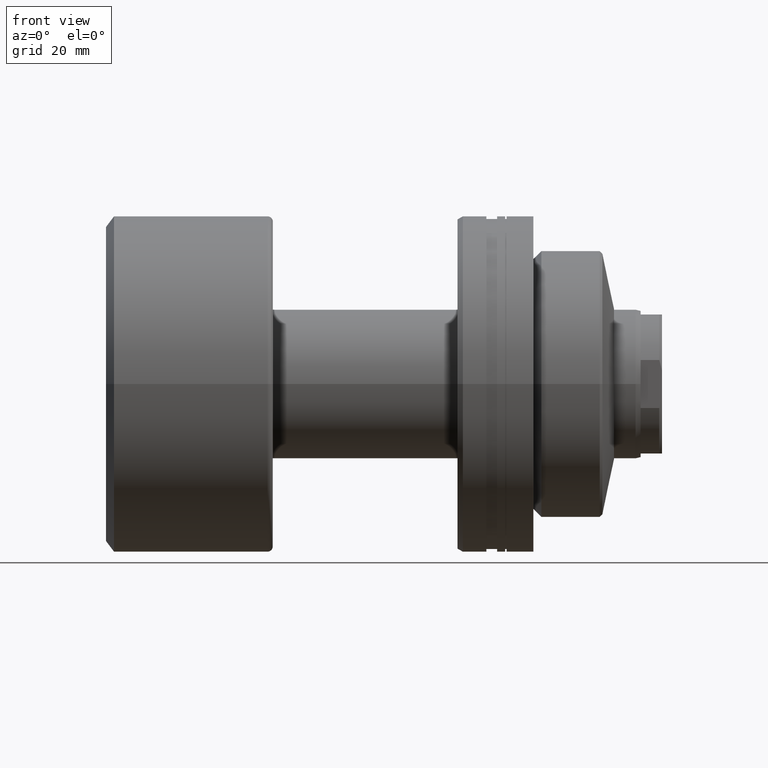
[diagram: clean part render]
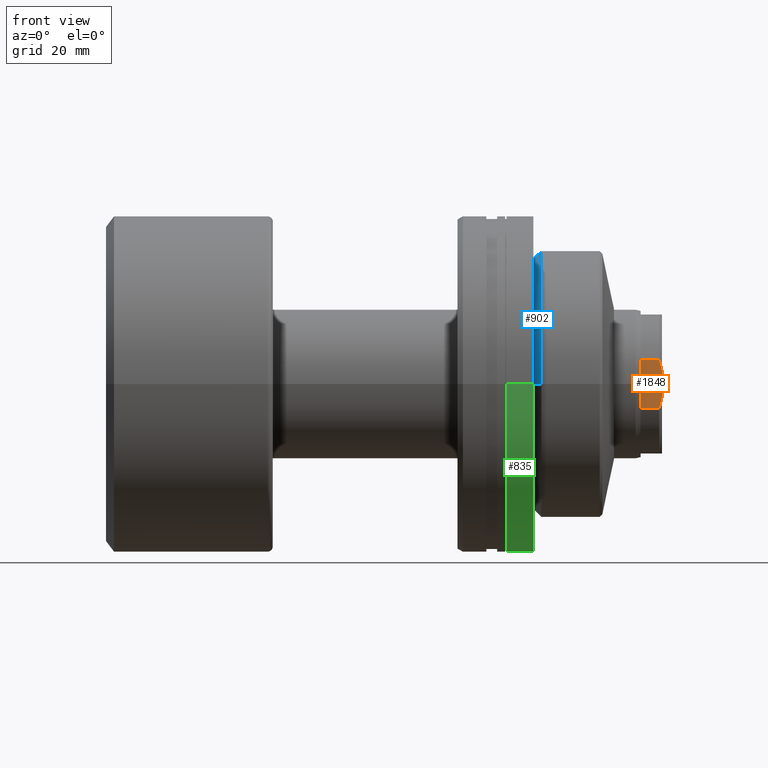
[diagram: same view with three faces highlighted in distinct colors, each labeled with its STEP entity id]
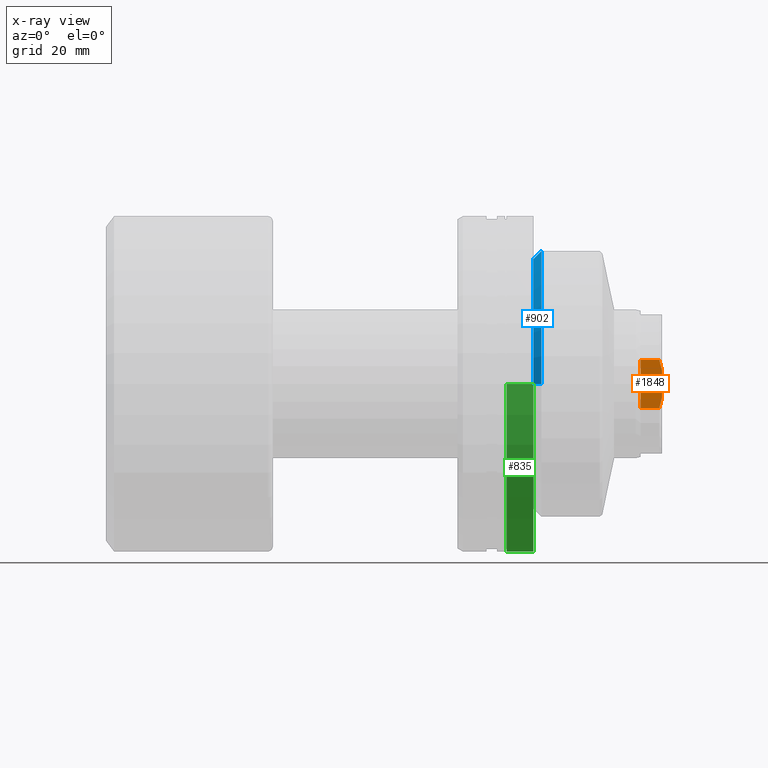
[diagram: x-ray of the same camera — body ghosted, the three highlighted faces saturated]
A machine part, front view with three faces highlighted in distinct colors.
The next image is the same camera in x-ray (body ghosted, the three faces saturated) — at least one of them is partly hidden behind the body in this view.
Their STEP definitions:

[orange] entity #1848 — the highlighted planar face has unit normal (0, 1, 0).
#20 = VERTEX_POINT ( 'NONE', #460 ) ;
#25 = CARTESIAN_POINT ( 'NONE',  ( 99.99999999999978684, -13.00000000000165379, -4.479118216792240759 ) ) ;
#36 = FACE_OUTER_BOUND ( 'NONE', #2209, .T. ) ;
#43 = EDGE_CURVE ( 'NONE', #412, #383, #1590, .T. ) ;
#55 = VERTEX_POINT ( 'NONE', #876 ) ;
#57 = VECTOR ( 'NONE', #776, 1000.000000000000000 ) ;
#112 = CARTESIAN_POINT ( 'NONE',  ( 103.5000000000000426, -13.00000000000224354, -4.479118216792421947 ) ) ;
#122 = ORIENTED_EDGE ( 'NONE', *, *, #585, .F. ) ;
#146 = DIRECTION ( 'NONE',  ( 0.000000000000000000, -3.872912908332386132E-16, 1.000000000000000000 ) ) ;
#271 = VECTOR ( 'NONE', #1379, 1000.000000000000000 ) ;
#334 = ORIENTED_EDGE ( 'NONE', *, *, #43, .T. ) ;
#341 = LINE ( 'NONE', #758, #643 ) ;
#343 = LINE ( 'NONE', #1391, #1251 ) ;
#383 = VERTEX_POINT ( 'NONE', #2056 ) ;
#412 = VERTEX_POINT ( 'NONE', #846 ) ;
#430 = CARTESIAN_POINT ( 'NONE',  ( 99.99999999999978684, -13.00000000000112621, 4.479118216795496821 ) ) ;
#460 = CARTESIAN_POINT ( 'NONE',  ( 103.9999999999997868, -13.00000000000172307, 2.561737691481097645 ) ) ;
#585 = EDGE_CURVE ( 'NONE', #55, #2162, #1491, .T. ) ;
#643 = VECTOR ( 'NONE', #1627, 1000.000000000000000 ) ;
#691 = CARTESIAN_POINT ( 'NONE',  ( 103.8743634208442899, -13.00000000000171951, -3.211564049327791270 ) ) ;
#740 = DIRECTION ( 'NONE',  ( -1.000000000000000000, 1.657264799492230625E-14, 0.000000000000000000 ) ) ;
#758 = CARTESIAN_POINT ( 'NONE',  ( 99.99999999999978684, -13.00000000000112621, 4.479118216795496821 ) ) ;
#776 = DIRECTION ( 'NONE',  ( 0.000000000000000000, -3.872912908332386132E-16, 1.000000000000000000 ) ) ;
#846 = CARTESIAN_POINT ( 'NONE',  ( 103.5000000000000426, -13.00000000000224354, -4.479118216792421947 ) ) ;
#876 = CARTESIAN_POINT ( 'NONE',  ( 99.99999999999978684, -13.00000000000218670, -4.479118216792421947 ) ) ;
#878 = CARTESIAN_POINT ( 'NONE',  ( 103.9999999999997868, -13.00000000000172307, 2.561737691481097645 ) ) ;
#909 = LINE ( 'NONE', #1613, #271 ) ;
#927 = ORIENTED_EDGE ( 'NONE', *, *, #1668, .T. ) ;
#1060 = EDGE_CURVE ( 'NONE', #20, #2211, #2096, .T. ) ;
#1070 = ORIENTED_EDGE ( 'NONE', *, *, #1060, .T. ) ;
#1106 = PLANE ( 'NONE',  #2275 ) ;
#1210 = CARTESIAN_POINT ( 'NONE',  ( 103.7049463852683147, -13.00000000000171774, 3.849973670685839622 ) ) ;
#1251 = VECTOR ( 'NONE', #146, 1000.000000000000000 ) ;
#1379 = DIRECTION ( 'NONE',  ( 1.000000000000000000, -1.657264799492230625E-14, -0.000000000000000000 ) ) ;
#1391 = CARTESIAN_POINT ( 'NONE',  ( 103.9999999999997868, -13.00000000000171951, -4.479118216792240759 ) ) ;
#1491 = LINE ( 'NONE', #1965, #57 ) ;
#1553 = EDGE_CURVE ( 'NONE', #383, #20, #343, .T. ) ;
#1570 = CARTESIAN_POINT ( 'NONE',  ( 103.8743634208440056, -13.00000000000172129, 3.211564049329081794 ) ) ;
#1590 = B_SPLINE_CURVE_WITH_KNOTS ( 'NONE', 3,
 ( #112, #2074, #691, #2277 ),
 .UNSPECIFIED., .F., .F.,
 ( 4, 4 ),
 ( 6.909694533986145947E-16, 0.001981501470814368056 ),
 .UNSPECIFIED. ) ;
#1613 = CARTESIAN_POINT ( 'NONE',  ( 99.99999999999978684, -13.00000000000218670, -4.479118216792421947 ) ) ;
#1627 = DIRECTION ( 'NONE',  ( 1.000000000000000000, -1.657264799492230625E-14, -0.000000000000000000 ) ) ;
#1668 = EDGE_CURVE ( 'NONE', #55, #412, #909, .T. ) ;
#1698 = ORIENTED_EDGE ( 'NONE', *, *, #2220, .F. ) ;
#1848 = ADVANCED_FACE ( 'NONE', ( #36 ), #1106, .F. ) ;
#1907 = CARTESIAN_POINT ( 'NONE',  ( 103.5000000000000142, -13.00000000000118483, 4.479118216795496821 ) ) ;
#1965 = CARTESIAN_POINT ( 'NONE',  ( 99.99999999999978684, -13.00000000000165379, -4.479118216792240759 ) ) ;
#1983 = DIRECTION ( 'NONE',  ( 1.657264799492230625E-14, 1.000000000000000000, 3.872912908332386132E-16 ) ) ;
#2038 = CARTESIAN_POINT ( 'NONE',  ( 103.5000000000000142, -13.00000000000118483, 4.479118216795496821 ) ) ;
#2056 = CARTESIAN_POINT ( 'NONE',  ( 104.0000000000000142, -13.00000000000171951, -2.561737691481324575 ) ) ;
#2074 = CARTESIAN_POINT ( 'NONE',  ( 103.7049463852701194, -13.00000000000018119, -3.849973670684600169 ) ) ;
#2096 = B_SPLINE_CURVE_WITH_KNOTS ( 'NONE', 3,
 ( #878, #1570, #1210, #1907 ),
 .UNSPECIFIED., .F., .F.,
 ( 4, 4 ),
 ( 5.637851296924623057E-17, 0.001981501470818259475 ),
 .UNSPECIFIED. ) ;
#2162 = VERTEX_POINT ( 'NONE', #430 ) ;
#2209 = EDGE_LOOP ( 'NONE', ( #927, #334, #2249, #1070, #1698, #122 ) ) ;
#2211 = VERTEX_POINT ( 'NONE', #2038 ) ;
#2220 = EDGE_CURVE ( 'NONE', #2162, #2211, #341, .T. ) ;
#2249 = ORIENTED_EDGE ( 'NONE', *, *, #1553, .T. ) ;
#2275 = AXIS2_PLACEMENT_3D ( 'NONE', #25, #1983, #740 ) ;
#2277 = CARTESIAN_POINT ( 'NONE',  ( 104.0000000000000142, -13.00000000000171951, -2.561737691481324575 ) ) ;

[blue] entity #902 — the highlighted conical surface has half-angle 45 deg.
#3 = CARTESIAN_POINT ( 'NONE',  ( -16.50000000000068212, -25.00000000000000000, 3.061616997868386198E-15 ) ) ;
#29 = AXIS2_PLACEMENT_3D ( 'NONE', #938, #785, #945 ) ;
#154 = LINE ( 'NONE', #688, #1554 ) ;
#209 = VERTEX_POINT ( 'NONE', #3 ) ;
#311 = EDGE_CURVE ( 'NONE', #433, #209, #511, .T. ) ;
#323 = ORIENTED_EDGE ( 'NONE', *, *, #823, .T. ) ;
#330 = VERTEX_POINT ( 'NONE', #2214 ) ;
#433 = VERTEX_POINT ( 'NONE', #880 ) ;
#456 = LINE ( 'NONE', #1510, #1699 ) ;
#511 = CIRCLE ( 'NONE', #29, 25.00000000000002842 ) ;
#551 = DIRECTION ( 'NONE',  ( -1.919268526612579991E-15, 1.000000000000000000, 0.000000000000000000 ) ) ;
#619 = ORIENTED_EDGE ( 'NONE', *, *, #748, .T. ) ;
#687 = DIRECTION ( 'NONE',  ( -1.919268526612579991E-15, 1.000000000000000000, 0.000000000000000000 ) ) ;
#688 = CARTESIAN_POINT ( 'NONE',  ( -18.00000000000009237, 23.50000000000072831, 0.000000000000000000 ) ) ;
#739 = DIRECTION ( 'NONE',  ( 1.000000000000000000, 1.931394410353556421E-15, -0.000000000000000000 ) ) ;
#748 = EDGE_CURVE ( 'NONE', #330, #1971, #1810, .T. ) ;
#785 = DIRECTION ( 'NONE',  ( 1.000000000000000000, 1.931394410353556421E-15, -0.000000000000000000 ) ) ;
#788 = DIRECTION ( 'NONE',  ( 0.7071067811865472397, -0.7071067811865479058, 8.659560562354953812E-17 ) ) ;
#823 = EDGE_CURVE ( 'NONE', #1971, #209, #456, .T. ) ;
#880 = CARTESIAN_POINT ( 'NONE',  ( -16.50000000000077804, 25.00000000000005684, 0.000000000000000000 ) ) ;
#902 = ADVANCED_FACE ( 'NONE', ( #1915 ), #1888, .T. ) ;
#938 = CARTESIAN_POINT ( 'NONE',  ( -16.50000000000072831, 2.661465894658677424E-14, 0.000000000000000000 ) ) ;
#945 = DIRECTION ( 'NONE',  ( -1.942890293094021579E-15, 1.000000000000000000, 0.000000000000000000 ) ) ;
#1020 = EDGE_LOOP ( 'NONE', ( #619, #323, #1124, #2047 ) ) ;
#1124 = ORIENTED_EDGE ( 'NONE', *, *, #311, .F. ) ;
#1237 = CARTESIAN_POINT ( 'NONE',  ( -18.00000000000004619, 2.371756733105775503E-14, 0.000000000000000000 ) ) ;
#1424 = CARTESIAN_POINT ( 'NONE',  ( -18.00000000000004619, 2.371756733105775503E-14, 0.000000000000000000 ) ) ;
#1510 = CARTESIAN_POINT ( 'NONE',  ( -18.00000000000000355, -23.50000000000067857, 2.877919977996365912E-15 ) ) ;
#1554 = VECTOR ( 'NONE', #2110, 1000.000000000000000 ) ;
#1565 = CARTESIAN_POINT ( 'NONE',  ( -18.00000000000000355, -23.50000000000067857, 2.969768487932376647E-15 ) ) ;
#1597 = AXIS2_PLACEMENT_3D ( 'NONE', #1237, #739, #551 ) ;
#1699 = VECTOR ( 'NONE', #788, 999.9999999999998863 ) ;
#1810 = CIRCLE ( 'NONE', #1597, 23.50000000000070344 ) ;
#1888 = CONICAL_SURFACE ( 'NONE', #1963, 23.50000000000070344, 0.7853981633974506105 ) ;
#1915 = FACE_OUTER_BOUND ( 'NONE', #1020, .T. ) ;
#1942 = EDGE_CURVE ( 'NONE', #330, #433, #154, .T. ) ;
#1963 = AXIS2_PLACEMENT_3D ( 'NONE', #1424, #2108, #687 ) ;
#1971 = VERTEX_POINT ( 'NONE', #1565 ) ;
#2047 = ORIENTED_EDGE ( 'NONE', *, *, #1942, .F. ) ;
#2108 = DIRECTION ( 'NONE',  ( 1.000000000000000000, 1.931394410353556421E-15, -0.000000000000000000 ) ) ;
#2110 = DIRECTION ( 'NONE',  ( 0.7071067811865445751, 0.7071067811865504593, 0.000000000000000000 ) ) ;
#2214 = CARTESIAN_POINT ( 'NONE',  ( -18.00000000000009237, 23.50000000000072831, 0.000000000000000000 ) ) ;

[green] entity #835 — the highlighted cylindrical surface (partial cylindrical patch) has radius 31.5 mm, axis along (1, 0, 0).
#68 = DIRECTION ( 'NONE',  ( -1.982541115402064518E-15, 1.000000000000000000, 0.000000000000000000 ) ) ;
#110 = EDGE_CURVE ( 'NONE', #794, #1002, #1512, .T. ) ;
#155 = CARTESIAN_POINT ( 'NONE',  ( -30.28002276692726014, -31.50000000000001421, 3.857637417314164267E-15 ) ) ;
#167 = VECTOR ( 'NONE', #454, 1000.000000000000000 ) ;
#194 = CARTESIAN_POINT ( 'NONE',  ( -23.00000000000006040, 1.406059527928995005E-14, 0.000000000000000000 ) ) ;
#201 = ORIENTED_EDGE ( 'NONE', *, *, #110, .T. ) ;
#216 = VECTOR ( 'NONE', #2261, 1000.000000000000000 ) ;
#292 = EDGE_LOOP ( 'NONE', ( #1374, #201, #1353, #2201 ) ) ;
#301 = LINE ( 'NONE', #155, #216 ) ;
#443 = FACE_OUTER_BOUND ( 'NONE', #292, .T. ) ;
#454 = DIRECTION ( 'NONE',  ( 1.000000000000000000, 1.931394410353556421E-15, -0.000000000000000000 ) ) ;
#465 = CARTESIAN_POINT ( 'NONE',  ( -30.28002276692732408, 0.000000000000000000, 0.000000000000000000 ) ) ;
#512 = DIRECTION ( 'NONE',  ( -1.982541115402064518E-15, 1.000000000000000000, 0.000000000000000000 ) ) ;
#518 = AXIS2_PLACEMENT_3D ( 'NONE', #194, #543, #512 ) ;
#528 = DIRECTION ( 'NONE',  ( 1.000000000000000000, 1.931394410353556421E-15, -0.000000000000000000 ) ) ;
#542 = AXIS2_PLACEMENT_3D ( 'NONE', #678, #528, #1061 ) ;
#543 = DIRECTION ( 'NONE',  ( 1.000000000000000000, 1.931394410353556421E-15, -0.000000000000000000 ) ) ;
#672 = VERTEX_POINT ( 'NONE', #994 ) ;
#678 = CARTESIAN_POINT ( 'NONE',  ( -18.00000000000005684, 2.371756733105773926E-14, 0.000000000000000000 ) ) ;
#743 = CIRCLE ( 'NONE', #542, 31.50000000000002132 ) ;
#794 = VERTEX_POINT ( 'NONE', #2063 ) ;
#835 = ADVANCED_FACE ( 'NONE', ( #443 ), #1150, .T. ) ;
#845 = CARTESIAN_POINT ( 'NONE',  ( -23.00000000000012434, 31.50000000000002842, 0.000000000000000000 ) ) ;
#851 = LINE ( 'NONE', #1347, #167 ) ;
#994 = CARTESIAN_POINT ( 'NONE',  ( -17.99999999999999645, -31.50000000000000000, 3.857637417314164267E-15 ) ) ;
#1002 = VERTEX_POINT ( 'NONE', #845 ) ;
#1061 = DIRECTION ( 'NONE',  ( -1.982541115402063729E-15, 1.000000000000000000, 0.000000000000000000 ) ) ;
#1150 = CYLINDRICAL_SURFACE ( 'NONE', #1997, 31.50000000000001421 ) ;
#1287 = CARTESIAN_POINT ( 'NONE',  ( -18.00000000000012079, 31.50000000000004263, 0.000000000000000000 ) ) ;
#1347 = CARTESIAN_POINT ( 'NONE',  ( -30.28002276692738803, 31.50000000000001421, 0.000000000000000000 ) ) ;
#1353 = ORIENTED_EDGE ( 'NONE', *, *, #1485, .T. ) ;
#1374 = ORIENTED_EDGE ( 'NONE', *, *, #1794, .F. ) ;
#1404 = VERTEX_POINT ( 'NONE', #1287 ) ;
#1485 = EDGE_CURVE ( 'NONE', #1002, #1404, #851, .T. ) ;
#1512 = CIRCLE ( 'NONE', #518, 31.50000000000001421 ) ;
#1631 = EDGE_CURVE ( 'NONE', #672, #1404, #743, .T. ) ;
#1654 = DIRECTION ( 'NONE',  ( 1.000000000000000000, 1.931394410353556421E-15, -0.000000000000000000 ) ) ;
#1794 = EDGE_CURVE ( 'NONE', #794, #672, #301, .T. ) ;
#1997 = AXIS2_PLACEMENT_3D ( 'NONE', #465, #1654, #68 ) ;
#2063 = CARTESIAN_POINT ( 'NONE',  ( -23.00000000000000000, -31.50000000000000000, 3.857637417314164267E-15 ) ) ;
#2201 = ORIENTED_EDGE ( 'NONE', *, *, #1631, .F. ) ;
#2261 = DIRECTION ( 'NONE',  ( 1.000000000000000000, 1.931394410353556421E-15, -0.000000000000000000 ) ) ;